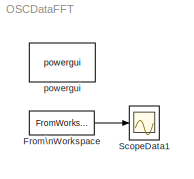
MODEL OSCDataFFT
KIND model
CONFIG InitFcn = OSCData = csvread('scope_111.csv', 2, 0)\nOSCData(:,1)=OSCData(:,1)-OSCData(1,1)\nN=size(OSCData)\nTosc=OSCData(N):1
BLOCK [FromWorkspace] From\nWorkspace
  SID = 3
  SampleTime = 0
  VariableName = OSCData
  ZeroCross = on
BLOCK [Scope] ScopeData1
  Floating = off
  NumInputPorts = 1
  Ports = [1]
  SID = 9
  ScopeSpecificationString = Simulink.scopes.TimeScopeBlockCfg('CurrentConfiguration', extmgr.ConfigurationSet(extmgr.Configuration('Core','General UI',true),extmgr.Configuration('Core','Source UI',true),extmgr.Configuration('Sources','WiredSimulink',true,'DataLogging',true,'DataLoggingVariableName','OscData1','DataLoggingSaveFormat','StructureWithTime','SampleTime','0.00001','DataLoggingDecimation','1','DataLoggingDecimateDa...<+1890ch>
BLOCK [Reference] powergui  REF=powerlib/powergui
  CurrentSourceSwitches = off
  DisableRonSwitches = off
  DisableSnubberDevices = off
  DisableVfSwitches = off
  DisplayEquations = off
  DisplayStyle = 2
  EnableUseOfTLC = off
  ErrMax = 1e-4
  ExternalGateDelay = off
  Frange = [0:2:500]
  FreqAxis = on
  FunctionMessages = off
  HookPort = off
  Interpol = off
  Iterations = 50
  MaxFrequency = 1500
  Pbase = 100e6
  Ports = []
  Priority = 1
  ResistiveCurrentMeasurement = off
  RestoreLinks = warning
  RmsSteady = 1
  SID = 4
  SPID = off
  SampleTime = 50e-6
  ShowGrid = off
  SolverType = Tustin
  SourceBlock = powerlib/powergui
  SourceProductBaseCode = PS
  SourceProductName = Simscape Power Systems
  SourceType = PSB option menu block
  StartTime = 0.08
  SwTol = 0
  Ts = 100
  UnitsV = kV
  UnitsW = MW
  Xlog = on
  Ylog = off
  ZoomFFT = on
  buscounter = 0
  cycles = 1
  display = off
  echomessages = off
  frequency = 60
  frequencyindice = 60
  frequencyindicesteady = 1
  fundamental = 40.2
  methode = off
  save = off
  structure = OscData1
  variable = ZData
  x0status = blocks
LINE From\nWorkspace:1 -> ScopeData1:1
